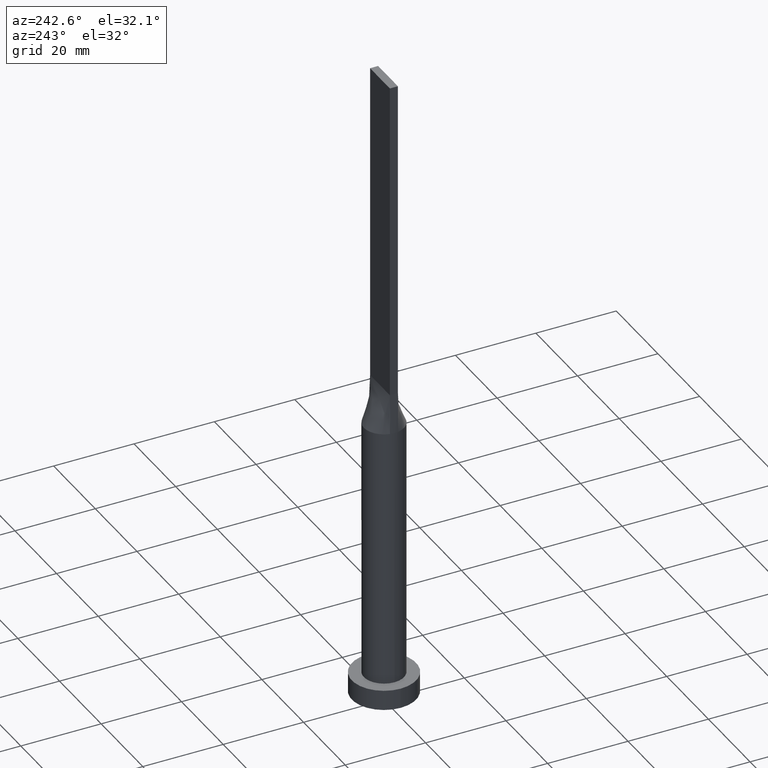
[diagram: clean part render]
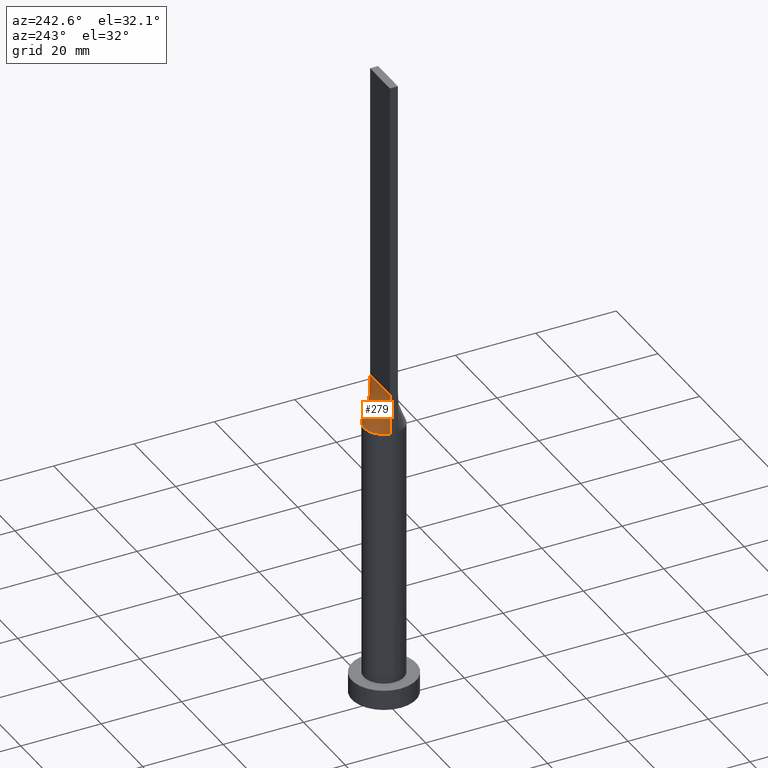
[diagram: same view with one face highlighted and labeled with its STEP entity id]
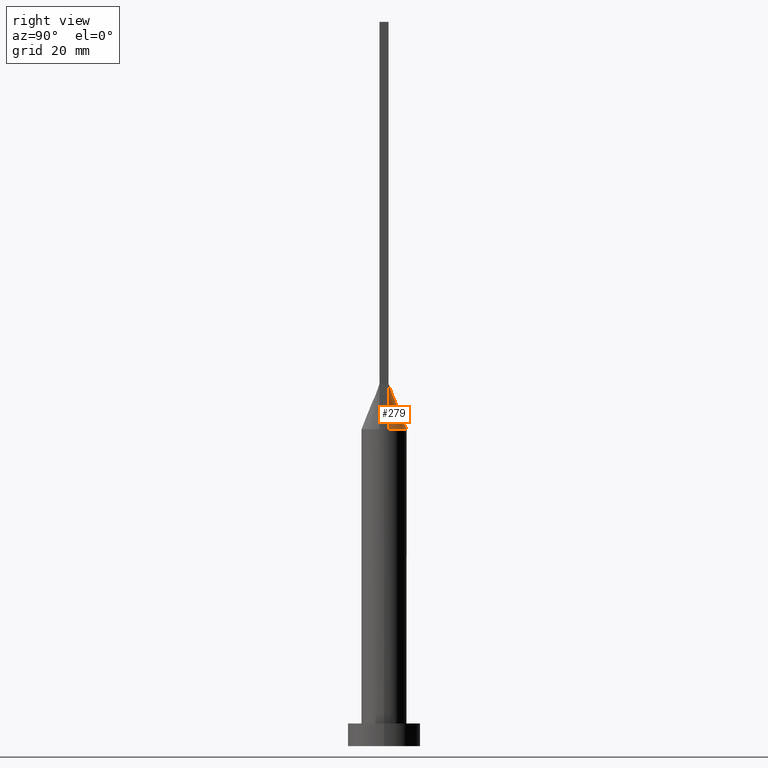
[diagram: same view with one face highlighted and labeled with its STEP entity id]
A machine part, auxiliary view. The second image highlights one B-rep face of the part: STEP entity #279.
A second angle (right view) of the same face is appended — the face is thin or edge-on in the first view.
In plain terms, the highlighted face is a freeform B-spline surface patch.
Its self-contained STEP definition (entity closure, byte-faithful):
#9 = ORIENTED_EDGE ( 'NONE', *, *, #163, .F. ) ;
#11 = CARTESIAN_POINT ( 'NONE',  ( 3.166666666666665630, 1.000000000000000000, 79.99999999999998579 ) ) ;
#19 = CARTESIAN_POINT ( 'NONE',  ( -3.900093280396789819, 3.182195704254724422, 70.00000000000002842 ) ) ;
#23 = CARTESIAN_POINT ( 'NONE',  ( -0.1979166666666680452, 1.000000000000000000, 79.99999999999998579 ) ) ;
#25 = CARTESIAN_POINT ( 'NONE',  ( -3.067114325249248097, 3.991228734590924976, 70.00000000000002842 ) ) ;
#33 = CARTESIAN_POINT ( 'NONE',  ( -4.892748924933745691, 1.030052405249209269, 70.00000000000000000 ) ) ;
#54 = VERTEX_POINT ( 'NONE', #455 ) ;
#63 = CARTESIAN_POINT ( 'NONE',  ( 0.3958333333333319271, 1.000000000000000000, 79.99999999999998579 ) ) ;
#70 = FACE_OUTER_BOUND ( 'NONE', #342, .T. ) ;
#72 = CARTESIAN_POINT ( 'NONE',  ( -1.583333333333334592, 1.000000000000000000, 79.99999999999998579 ) ) ;
#76 = CARTESIAN_POINT ( 'NONE',  ( -3.900093280396789819, 3.182195704254724422, 70.00000000000002842 ) ) ;
#89 = DIRECTION ( 'NONE',  ( -1.000000000000000000, -0.000000000000000000, -0.000000000000000000 ) ) ;
#91 = EDGE_CURVE ( 'NONE', #439, #237, #476, .T. ) ;
#106 = CARTESIAN_POINT ( 'NONE',  ( -3.166666666666668295, 1.000000000000000000, 79.99999999999998579 ) ) ;
#111 = ORIENTED_EDGE ( 'NONE', *, *, #510, .F. ) ;
#112 = CARTESIAN_POINT ( 'NONE',  ( 0.7916666666666654084, 1.000000000000000000, 79.99999999999998579 ) ) ;
#125 = CARTESIAN_POINT ( 'NONE',  ( -1.331739278681919991, 4.830988864699813590, 70.00000000000000000 ) ) ;
#126 = CARTESIAN_POINT ( 'NONE',  ( 4.750000000000000000, 1.000000000000000000, 80.00000000000000000 ) ) ;
#127 = CARTESIAN_POINT ( 'NONE',  ( -0.3380808736611314869, 4.999999999999999112, 70.00000000000000000 ) ) ;
#130 = LINE ( 'NONE', #454, #483 ) ;
#132 = VECTOR ( 'NONE', #89, 1000.000000000000000 ) ;
#153 = CARTESIAN_POINT ( 'NONE',  ( -1.331739278681919991, 4.830988864699813590, 70.00000000000000000 ) ) ;
#159 = CARTESIAN_POINT ( 'NONE',  ( 0.6760916456145784625, 4.965368365385191218, 70.00000000000001421 ) ) ;
#161 = CARTESIAN_POINT ( 'NONE',  ( -0.7916666666666679619, 1.000000000000000000, 79.99999999999998579 ) ) ;
#163 = EDGE_CURVE ( 'NONE', #378, #54, #599, .T. ) ;
#168 = CARTESIAN_POINT ( 'NONE',  ( 1.331739278681919991, 4.830988864699814478, 70.00000000000000000 ) ) ;
#178 = CARTESIAN_POINT ( 'NONE',  ( -4.214142381859630859, 2.735777372109856387, 70.00000000000000000 ) ) ;
#180 = CARTESIAN_POINT ( 'NONE',  ( 4.214142381859630859, 2.735777372109855943, 70.00000000000001421 ) ) ;
#190 = CARTESIAN_POINT ( 'NONE',  ( -4.892747712986291297, 1.030052143680498133, 70.00000000000000000 ) ) ;
#195 = CARTESIAN_POINT ( 'NONE',  ( 2.770833333333332593, 1.000000000000000000, 79.99999999999998579 ) ) ;
#203 = CARTESIAN_POINT ( 'NONE',  ( 1.583333333333332593, 1.000000000000000000, 79.99999999999998579 ) ) ;
#207 = CARTESIAN_POINT ( 'NONE',  ( -1.649264041307594963, 4.731318088779739917, 70.00000000000000000 ) ) ;
#209 = CARTESIAN_POINT ( 'NONE',  ( -2.770833333333334814, 1.000000000000000000, 79.99999999999998579 ) ) ;
#222 = CARTESIAN_POINT ( 'NONE',  ( -3.067114325249248097, 3.991228734590924976, 70.00000000000002842 ) ) ;
#225 = CARTESIAN_POINT ( 'NONE',  ( 4.667610010780610885, 1.859271532507960289, 70.00000000000001421 ) ) ;
#230 = VECTOR ( 'NONE', #548, 999.9999999999998863 ) ;
#237 = VERTEX_POINT ( 'NONE', #190 ) ;
#242 = CARTESIAN_POINT ( 'NONE',  ( 4.892748924933745691, 1.030052405249209269, 70.00000000000000000 ) ) ;
#249 = CARTESIAN_POINT ( 'NONE',  ( -0.6760916456145782405, 4.965368365385191218, 70.00000000000001421 ) ) ;
#253 = CARTESIAN_POINT ( 'NONE',  ( 1.979166666666666075, 1.000000000000000000, 79.99999999999998579 ) ) ;
#256 = CARTESIAN_POINT ( 'NONE',  ( 4.808752461626938590, 1.429035605956548549, 70.00000000000000000 ) ) ;
#261 = CARTESIAN_POINT ( 'NONE',  ( 3.067114325249248097, 3.991228734590925864, 70.00000000000002842 ) ) ;
#266 = CARTESIAN_POINT ( 'NONE',  ( -4.808752461626937702, 1.429035605956548771, 70.00000000000000000 ) ) ;
#270 = CARTESIAN_POINT ( 'NONE',  ( 4.808752461626938590, 1.429035605956548549, 70.00000000000000000 ) ) ;
#279 = ADVANCED_FACE ( 'NONE', ( #70 ), #532, .T. ) ;
#284 = ORIENTED_EDGE ( 'NONE', *, *, #91, .T. ) ;
#291 = CARTESIAN_POINT ( 'NONE',  ( 0.1979166666666652141, 1.000000000000000000, 79.99999999999998579 ) ) ;
#293 = CARTESIAN_POINT ( 'NONE',  ( -0.3380808736611314869, 4.999999999999999112, 70.00000000000000000 ) ) ;
#297 = CARTESIAN_POINT ( 'NONE',  ( 3.900093280396791151, 3.182195704254724422, 70.00000000000001421 ) ) ;
#301 = CARTESIAN_POINT ( 'NONE',  ( 4.667610010780610885, 1.859271532507960289, 70.00000000000001421 ) ) ;
#318 = CARTESIAN_POINT ( 'NONE',  ( 4.821374462466871513, 1.015026202624605522, 75.00000000000001421 ) ) ;
#330 = CARTESIAN_POINT ( 'NONE',  ( 3.958333333333332593, 1.000000000000000000, 80.00000000000000000 ) ) ;
#333 = CARTESIAN_POINT ( 'NONE',  ( -1.979166666666668073, 1.000000000000000000, 79.99999999999998579 ) ) ;
#342 = EDGE_LOOP ( 'NONE', ( #284, #461, #9, #111 ) ) ;
#352 = CARTESIAN_POINT ( 'NONE',  ( 3.900093280396791151, 3.182195704254724422, 70.00000000000001421 ) ) ;
#359 = CARTESIAN_POINT ( 'NONE',  ( 0.6760916456145784625, 4.965368365385191218, 70.00000000000001421 ) ) ;
#377 = CARTESIAN_POINT ( 'NONE',  ( 1.331739278681919991, 4.830988864699814478, 70.00000000000000000 ) ) ;
#378 = VERTEX_POINT ( 'NONE', #126 ) ;
#385 = CARTESIAN_POINT ( 'NONE',  ( -2.546422404201597711, 4.351724242187074765, 70.00000000000001421 ) ) ;
#392 = CARTESIAN_POINT ( 'NONE',  ( 4.892748924933744803, 1.030052405249211045, 70.00000000000000000 ) ) ;
#403 = CARTESIAN_POINT ( 'NONE',  ( -4.354166666666667851, 1.000000000000000000, 79.99999999999998579 ) ) ;
#404 = CARTESIAN_POINT ( 'NONE',  ( 0.3380808736611315979, 4.999999999999999112, 70.00000000000000000 ) ) ;
#405 = LINE ( 'NONE', #318, #230 ) ;
#435 = CARTESIAN_POINT ( 'NONE',  ( -0.3958333333333347026, 1.000000000000000000, 79.99999999999998579 ) ) ;
#438 = CARTESIAN_POINT ( 'NONE',  ( 4.354166666666666075, 1.000000000000000000, 80.00000000000000000 ) ) ;
#439 = VERTEX_POINT ( 'NONE', #392 ) ;
#441 = CARTESIAN_POINT ( 'NONE',  ( 0.9895833333333323711, 1.000000000000000000, 79.99999999999998579 ) ) ;
#447 = CARTESIAN_POINT ( 'NONE',  ( -4.750000000000000000, 1.000000000000000000, 80.00000000000000000 ) ) ;
#451 = EDGE_CURVE ( 'NONE', #237, #54, #130, .T. ) ;
#454 = CARTESIAN_POINT ( 'NONE',  ( -4.821374462466872401, 1.015026202624604634, 75.00000000000001421 ) ) ;
#455 = CARTESIAN_POINT ( 'NONE',  ( -4.750000000000000000, 1.000000000000000000, 80.00000000000000000 ) ) ;
#461 = ORIENTED_EDGE ( 'NONE', *, *, #451, .T. ) ;
#476 = B_SPLINE_CURVE_WITH_KNOTS ( 'NONE', 3,
 ( #592, #270, #225, #180, #352, #261, #538, #594, #168, #359, #404, #127, #543, #125, #534, #502, #222, #76, #178, #497, #266, #588 ),
 .UNSPECIFIED., .F., .F.,
 ( 4, 2, 2, 2, 2, 2, 2, 2, 2, 2, 4 ),
 ( 0.000000000000000000, 0.1250000000000000278, 0.2500000000000000000, 0.3749999999999999445, 0.4375000000000000000, 0.5000000000000000000, 0.5625000000000000000, 0.6250000000000000000, 0.7500000000000000000, 0.8750000000000001110, 1.000000000000000000 ),
 .UNSPECIFIED. ) ;
#477 = CARTESIAN_POINT ( 'NONE',  ( -4.667610010780610885, 1.859271532507960067, 70.00000000000001421 ) ) ;
#480 = CARTESIAN_POINT ( 'NONE',  ( -0.9895833333333347026, 1.000000000000000000, 79.99999999999998579 ) ) ;
#482 = CARTESIAN_POINT ( 'NONE',  ( 4.750000000000000000, 1.000000000000000000, 80.00000000000000000 ) ) ;
#483 = VECTOR ( 'NONE', #496, 999.9999999999998863 ) ;
#487 = CARTESIAN_POINT ( 'NONE',  ( 1.649264041307594297, 4.731318088779739917, 69.99999999999998579 ) ) ;
#496 = DIRECTION ( 'NONE',  ( 0.01427337385845013802, -0.003004920812305251175, 0.9998936149659166661 ) ) ;
#497 = CARTESIAN_POINT ( 'NONE',  ( -4.667610010780610885, 1.859271532507960067, 70.00000000000001421 ) ) ;
#502 = CARTESIAN_POINT ( 'NONE',  ( -2.546422404201597711, 4.351724242187074765, 70.00000000000001421 ) ) ;
#510 = EDGE_CURVE ( 'NONE', #439, #378, #405, .T. ) ;
#517 = CARTESIAN_POINT ( 'NONE',  ( -4.214142381859630859, 2.735777372109856387, 70.00000000000000000 ) ) ;
#520 = CARTESIAN_POINT ( 'NONE',  ( -3.958333333333334370, 1.000000000000000000, 79.99999999999998579 ) ) ;
#523 = CARTESIAN_POINT ( 'NONE',  ( 4.214142381859630859, 2.735777372109855943, 70.00000000000001421 ) ) ;
#532 = B_SPLINE_SURFACE_WITH_KNOTS ( 'NONE', 3, 1, ( 
 ( #242, #482 ),
 ( #256, #438 ),
 ( #301, #330 ),
 ( #523, #11 ),
 ( #297, #195 ),
 ( #573, #253 ),
 ( #578, #203 ),
 ( #487, #441 ),
 ( #377, #112 ),
 ( #159, #63 ),
 ( #565, #291 ),
 ( #293, #23 ),
 ( #249, #435 ),
 ( #153, #161 ),
 ( #207, #480 ),
 ( #385, #72 ),
 ( #25, #333 ),
 ( #19, #209 ),
 ( #517, #106 ),
 ( #477, #520 ),
 ( #581, #403 ),
 ( #33, #447 ) ),
 .UNSPECIFIED., .F., .F., .F.,
 ( 4, 2, 2, 2, 2, 2, 2, 2, 2, 2, 4 ),
 ( 2, 2 ),
 ( 0.000000000000000000, 0.1250000000000000278, 0.2500000000000000000, 0.3749999999999999445, 0.4375000000000000000, 0.5000000000000000000, 0.5625000000000000000, 0.6250000000000000000, 0.7500000000000000000, 0.8750000000000001110, 1.000000000000000000 ),
 ( 0.000000000000000000, 1.000000000000000000 ),
 .UNSPECIFIED. ) ;
#534 = CARTESIAN_POINT ( 'NONE',  ( -1.649264041307594963, 4.731318088779739917, 70.00000000000000000 ) ) ;
#538 = CARTESIAN_POINT ( 'NONE',  ( 2.546422404201596823, 4.351724242187075653, 70.00000000000000000 ) ) ;
#543 = CARTESIAN_POINT ( 'NONE',  ( -0.6760916456145782405, 4.965368365385191218, 70.00000000000001421 ) ) ;
#548 = DIRECTION ( 'NONE',  ( -0.01427337385845005129, -0.003004920812305424214, 0.9998936149659166661 ) ) ;
#565 = CARTESIAN_POINT ( 'NONE',  ( 0.3380808736611315979, 4.999999999999999112, 70.00000000000000000 ) ) ;
#573 = CARTESIAN_POINT ( 'NONE',  ( 3.067114325249248097, 3.991228734590925864, 70.00000000000002842 ) ) ;
#578 = CARTESIAN_POINT ( 'NONE',  ( 2.546422404201596823, 4.351724242187075653, 70.00000000000000000 ) ) ;
#581 = CARTESIAN_POINT ( 'NONE',  ( -4.808752461626937702, 1.429035605956548771, 70.00000000000000000 ) ) ;
#588 = CARTESIAN_POINT ( 'NONE',  ( -4.892747712986291297, 1.030052143680498133, 70.00000000000000000 ) ) ;
#592 = CARTESIAN_POINT ( 'NONE',  ( 4.892748924933744803, 1.030052405249211045, 70.00000000000000000 ) ) ;
#594 = CARTESIAN_POINT ( 'NONE',  ( 1.649264041307594297, 4.731318088779739917, 69.99999999999998579 ) ) ;
#596 = CARTESIAN_POINT ( 'NONE',  ( -4.750000000000000000, 1.000000000000000000, 80.00000000000000000 ) ) ;
#599 = LINE ( 'NONE', #596, #132 ) ;